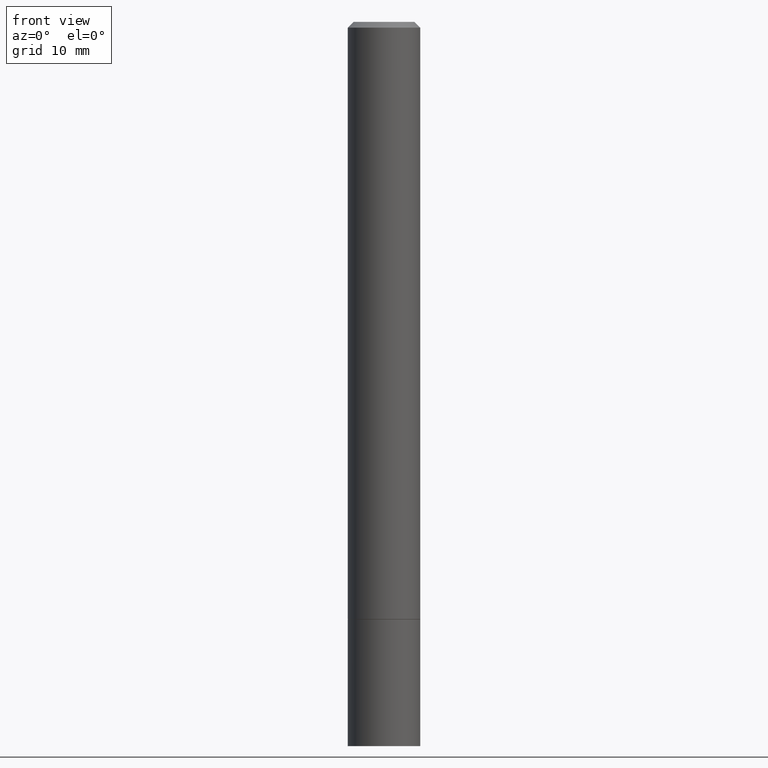
[diagram: clean part render]
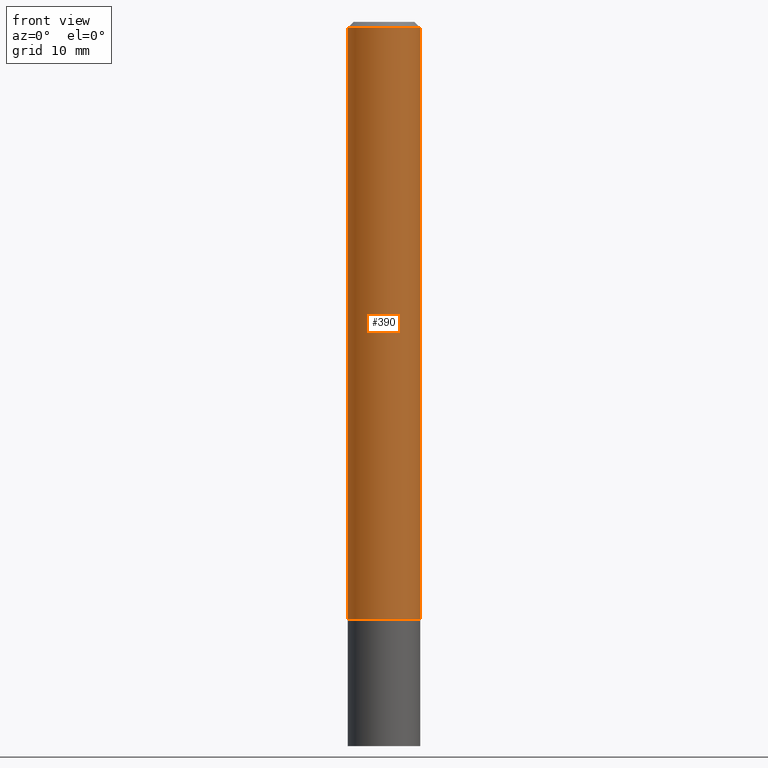
[diagram: same view with one face highlighted and labeled with its STEP entity id]
A machine part, front view. The second image highlights one B-rep face of the part: STEP entity #390.
In plain terms, the highlighted cylindrical surface (edge-blend (fillet) strip) has radius 3.175 mm, axis along (-0, 0, 1).
Its self-contained STEP definition (entity closure, byte-faithful):
#16 = CARTESIAN_POINT ( 'NONE',  ( 5.041333943950659188E-29, -7.197688780025145571E-15, -2.061500000000000110 ) ) ;
#37 = LINE ( 'NONE', #164, #47 ) ;
#43 = CYLINDRICAL_SURFACE ( 'NONE', #325, 0.1249999999999998612 ) ;
#46 = VERTEX_POINT ( 'NONE', #129 ) ;
#47 = VECTOR ( 'NONE', #214, 39.37007874015748143 ) ;
#48 = DIRECTION ( 'NONE',  ( 1.000000000000000000, -6.982962677686266711E-15, 4.876176775795935793E-29 ) ) ;
#49 = VERTEX_POINT ( 'NONE', #213 ) ;
#53 = ORIENTED_EDGE ( 'NONE', *, *, #71, .F. ) ;
#71 = EDGE_CURVE ( 'NONE', #267, #46, #37, .T. ) ;
#74 = CIRCLE ( 'NONE', #252, 0.1249999999999997363 ) ;
#100 = DIRECTION ( 'NONE',  ( -2.445468806185136877E-29, 3.491481338843145188E-15, 1.000000000000000000 ) ) ;
#121 = EDGE_LOOP ( 'NONE', ( #53, #359, #241, #197 ) ) ;
#129 = CARTESIAN_POINT ( 'NONE',  ( -0.1249999999999997363, 8.030407079339185615E-16, -0.02000000000000003164 ) ) ;
#164 = CARTESIAN_POINT ( 'NONE',  ( -0.1249999999999998612, 8.881784197001242463E-16, -6.148668862818625221E-30 ) ) ;
#183 = AXIS2_PLACEMENT_3D ( 'NONE', #16, #372, #318 ) ;
#195 = DIRECTION ( 'NONE',  ( -2.445468806185136597E-29, 3.491481338843145583E-15, 1.000000000000000000 ) ) ;
#197 = ORIENTED_EDGE ( 'NONE', *, *, #319, .F. ) ;
#198 = CARTESIAN_POINT ( 'NONE',  ( -0.1250000000000000000, -2.745580783700874863E-15, -2.061500000000000110 ) ) ;
#213 = CARTESIAN_POINT ( 'NONE',  ( 0.1250000000000000000, -8.070559114735927332E-15, -2.061500000000000110 ) ) ;
#214 = DIRECTION ( 'NONE',  ( -2.445468806185136877E-29, 3.491481338843145188E-15, 1.000000000000000000 ) ) ;
#221 = EDGE_CURVE ( 'NONE', #49, #328, #303, .T. ) ;
#222 = CARTESIAN_POINT ( 'NONE',  ( 0.000000000000000000, 0.000000000000000000, 0.000000000000000000 ) ) ;
#228 = DIRECTION ( 'NONE',  ( -2.445468806185136597E-29, 3.491481338843145583E-15, 1.000000000000000000 ) ) ;
#241 = ORIENTED_EDGE ( 'NONE', *, *, #221, .T. ) ;
#247 = CARTESIAN_POINT ( 'NONE',  ( 0.1249999999999998612, -8.728703347107823527E-16, 6.095220969744912735E-30 ) ) ;
#252 = AXIS2_PLACEMENT_3D ( 'NONE', #342, #228, #346 ) ;
#267 = VERTEX_POINT ( 'NONE', #198 ) ;
#287 = CARTESIAN_POINT ( 'NONE',  ( 0.1249999999999997363, -9.273918764983025741E-16, -0.02000000000000003164 ) ) ;
#303 = LINE ( 'NONE', #247, #363 ) ;
#318 = DIRECTION ( 'NONE',  ( 1.000000000000000000, -6.982962677686262766E-15, 0.000000000000000000 ) ) ;
#319 = EDGE_CURVE ( 'NONE', #46, #328, #74, .T. ) ;
#325 = AXIS2_PLACEMENT_3D ( 'NONE', #222, #195, #48 ) ;
#328 = VERTEX_POINT ( 'NONE', #287 ) ;
#342 = CARTESIAN_POINT ( 'NONE',  ( 4.890937612370280165E-31, -6.982962677686301470E-17, -0.02000000000000003164 ) ) ;
#345 = EDGE_CURVE ( 'NONE', #267, #49, #348, .T. ) ;
#346 = DIRECTION ( 'NONE',  ( 1.000000000000000000, -6.982962677686267499E-15, 0.000000000000000000 ) ) ;
#348 = CIRCLE ( 'NONE', #183, 0.1250000000000000000 ) ;
#359 = ORIENTED_EDGE ( 'NONE', *, *, #345, .T. ) ;
#363 = VECTOR ( 'NONE', #100, 39.37007874015748143 ) ;
#371 = FACE_OUTER_BOUND ( 'NONE', #121, .T. ) ;
#372 = DIRECTION ( 'NONE',  ( -2.445468806185136597E-29, 3.491481338843145583E-15, 1.000000000000000000 ) ) ;
#390 = ADVANCED_FACE ( 'NONE', ( #371 ), #43, .T. ) ;